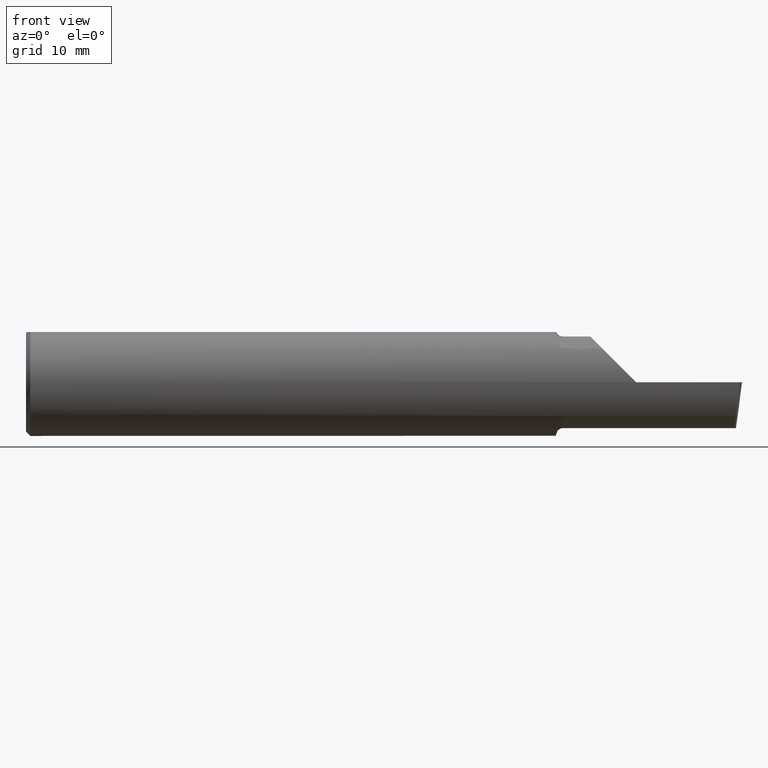
[diagram: clean part render]
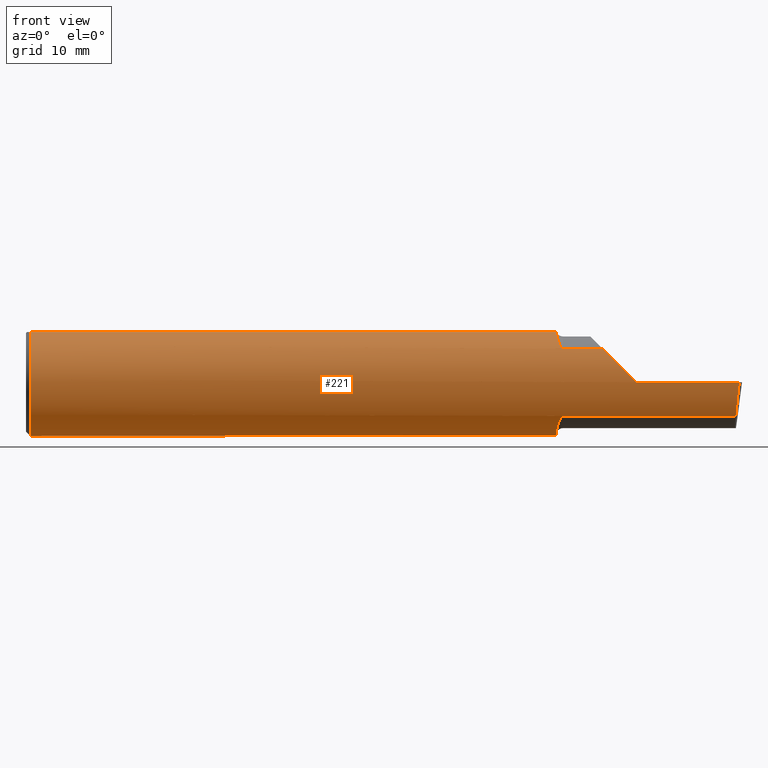
[diagram: same view with one face highlighted and labeled with its STEP entity id]
A machine part, front view. The second image highlights one B-rep face of the part: STEP entity #221.
In plain terms, the highlighted cylindrical surface (partial cylindrical patch) has radius 4.7587 mm, axis along (-1, -0, -0).
Its self-contained STEP definition (entity closure, byte-faithful):
#9 = CARTESIAN_POINT ( 'NONE',  ( 1.875000000000000000, -0.1458506693440427548, 0.1175908361731248797 ) ) ;
#14 = VERTEX_POINT ( 'NONE', #1193 ) ;
#19 = CARTESIAN_POINT ( 'NONE',  ( 1.870406129700034503, -0.1440620991073834900, 0.1197788275335143343 ) ) ;
#28 = CARTESIAN_POINT ( 'NONE',  ( 0.01499999999999970281, 0.000000000000000000, 0.000000000000000000 ) ) ;
#31 = VECTOR ( 'NONE', #447, 39.37007874015748143 ) ;
#41 = CARTESIAN_POINT ( 'NONE',  ( 1.851098502765448073, -0.06597272163553667690, 0.1753499999999999504 ) ) ;
#47 = CARTESIAN_POINT ( 'NONE',  ( 1.875000000000000000, -0.1458506693440427548, -0.1175908361731248936 ) ) ;
#53 = VECTOR ( 'NONE', #1042, 39.37007874015748143 ) ;
#58 = EDGE_CURVE ( 'NONE', #216, #253, #649, .T. ) ;
#60 = VERTEX_POINT ( 'NONE', #434 ) ;
#61 = CARTESIAN_POINT ( 'NONE',  ( 2.500000000000000000, -0.06597272163553667690, 0.1753499999999999504 ) ) ;
#66 = EDGE_CURVE ( 'NONE', #854, #476, #115, .T. ) ;
#77 = VERTEX_POINT ( 'NONE', #1012 ) ;
#84 = CARTESIAN_POINT ( 'NONE',  ( 2.500000000000000000, 0.06597272163553667690, 0.1753499999999999504 ) ) ;
#98 = CARTESIAN_POINT ( 'NONE',  ( 2.129999999999999893, -0.1873499933279955953, 4.999999999980550330E-05 ) ) ;
#103 = CARTESIAN_POINT ( 'NONE',  ( 2.129999999999999893, 0.000000000000000000, 0.000000000000000000 ) ) ;
#115 = LINE ( 'NONE', #778, #901 ) ;
#120 = EDGE_CURVE ( 'NONE', #741, #874, #1227, .T. ) ;
#136 = CARTESIAN_POINT ( 'NONE',  ( 1.854230084997277261, -0.09734420566617382753, 0.1603106885969620143 ) ) ;
#155 = EDGE_CURVE ( 'NONE', #77, #1074, #1251, .T. ) ;
#172 = LINE ( 'NONE', #549, #860 ) ;
#178 = CARTESIAN_POINT ( 'NONE',  ( 1.866259014618896206, -0.1391655641058451298, -0.1254591096813069961 ) ) ;
#193 = CARTESIAN_POINT ( 'NONE',  ( 1.850039838006806825, -0.03734999999998269565, -0.1835892153695343754 ) ) ;
#199 = DIRECTION ( 'NONE',  ( 0.000000000000000000, 0.000000000000000000, -1.000000000000000000 ) ) ;
#210 = DIRECTION ( 'NONE',  ( 0.000000000000000000, 0.000000000000000000, -1.000000000000000000 ) ) ;
#216 = VERTEX_POINT ( 'NONE', #977 ) ;
#221 = ADVANCED_FACE ( 'NONE', ( #587 ), #601, .T. ) ;
#235 = EDGE_CURVE ( 'NONE', #60, #561, #281, .T. ) ;
#253 = VERTEX_POINT ( 'NONE', #872 ) ;
#254 = CARTESIAN_POINT ( 'NONE',  ( 1.850000000000000311, 0.06597272163553667690, 0.1753499999999999504 ) ) ;
#264 = LINE ( 'NONE', #936, #53 ) ;
#281 = CIRCLE ( 'NONE', #839, 0.1873499999999999888 ) ;
#283 = CARTESIAN_POINT ( 'NONE',  ( 1.850166568237841425, -0.04837106252207426516, -0.1813470537895560952 ) ) ;
#291 = CARTESIAN_POINT ( 'NONE',  ( 1.857923878564141429, -0.1176491503945758521, -0.1462176107371216116 ) ) ;
#297 = CARTESIAN_POINT ( 'NONE',  ( 1.875000000000000000, -0.1458506693440427548, -0.1175908361731248936 ) ) ;
#305 = CARTESIAN_POINT ( 'NONE',  ( 1.869508186118483906, -0.1432785244528196056, -0.1207177450233198057 ) ) ;
#319 = CARTESIAN_POINT ( 'NONE',  ( 1.855399435735852309, -0.1047159129172011843, 0.1555916541660355978 ) ) ;
#323 = ORIENTED_EDGE ( 'NONE', *, *, #469, .T. ) ;
#340 = CARTESIAN_POINT ( 'NONE',  ( 2.129999999999999893, -0.1873499933279955953, 4.999999999980550330E-05 ) ) ;
#348 = DIRECTION ( 'NONE',  ( -1.000000000000000000, -0.000000000000000000, -0.000000000000000000 ) ) ;
#368 = EDGE_CURVE ( 'NONE', #216, #792, #264, .T. ) ;
#369 = DIRECTION ( 'NONE',  ( 0.000000000000000000, 0.000000000000000000, -1.000000000000000000 ) ) ;
#384 = AXIS2_PLACEMENT_3D ( 'NONE', #887, #413, #417 ) ;
#395 = CARTESIAN_POINT ( 'NONE',  ( 0.01499999999999970281, 0.06597272163553667690, 0.1753499999999999504 ) ) ;
#411 = CARTESIAN_POINT ( 'NONE',  ( 1.864894673599584163, -0.1369836147008977878, 0.1278739516676672128 ) ) ;
#413 = DIRECTION ( 'NONE',  ( -1.000000000000000000, -0.000000000000000000, -0.000000000000000000 ) ) ;
#417 = DIRECTION ( 'NONE',  ( 0.000000000000000000, 0.000000000000000000, 1.000000000000000000 ) ) ;
#420 = CARTESIAN_POINT ( 'NONE',  ( 1.858319021612074851, -0.1185481145634844080, 0.1453290397602938211 ) ) ;
#423 = VECTOR ( 'NONE', #474, 39.37007874015748143 ) ;
#427 = CARTESIAN_POINT ( 'NONE',  ( 1.873870791247174594, -0.1458506693440428104, 0.1175908361731248797 ) ) ;
#429 = ORIENTED_EDGE ( 'NONE', *, *, #1191, .T. ) ;
#434 = CARTESIAN_POINT ( 'NONE',  ( 2.129999999999999893, -0.1873499999999999888, -3.414809992080329023E-17 ) ) ;
#435 = CARTESIAN_POINT ( 'NONE',  ( 0.01499999999999970281, 0.000000000000000000, -0.1873499999999999888 ) ) ;
#447 = DIRECTION ( 'NONE',  ( -1.000000000000000000, -0.000000000000000000, -0.000000000000000000 ) ) ;
#453 = CARTESIAN_POINT ( 'NONE',  ( 0.01499999999999970281, 0.000000000000000000, 0.000000000000000000 ) ) ;
#469 = EDGE_CURVE ( 'NONE', #77, #547, #590, .T. ) ;
#474 = DIRECTION ( 'NONE',  ( 1.000000000000000000, 0.000000000000000000, 0.000000000000000000 ) ) ;
#476 = VERTEX_POINT ( 'NONE', #884 ) ;
#488 = CARTESIAN_POINT ( 'NONE',  ( 2.046082715205439051, -0.1729593657901919435, 0.08396728479456107286 ) ) ;
#494 = DIRECTION ( 'NONE',  ( 0.000000000000000000, 0.000000000000000000, 1.000000000000000000 ) ) ;
#496 = CARTESIAN_POINT ( 'NONE',  ( 1.861829932363948004, -0.1298708400701842069, -0.1351436637213307423 ) ) ;
#501 = DIRECTION ( 'NONE',  ( 1.000000000000000000, 0.000000000000000000, 0.000000000000000000 ) ) ;
#514 = CARTESIAN_POINT ( 'NONE',  ( 1.850039838006806825, -0.03734999999998269565, -0.1835892153695343754 ) ) ;
#547 = VERTEX_POINT ( 'NONE', #514 ) ;
#549 = CARTESIAN_POINT ( 'NONE',  ( 2.500000000000000000, -0.1873499999999999888, -3.414809992080329023E-17 ) ) ;
#561 = VERTEX_POINT ( 'NONE', #340 ) ;
#578 = ORIENTED_EDGE ( 'NONE', *, *, #632, .T. ) ;
#583 = AXIS2_PLACEMENT_3D ( 'NONE', #453, #919, #369 ) ;
#587 = FACE_OUTER_BOUND ( 'NONE', #602, .T. ) ;
#590 = B_SPLINE_CURVE_WITH_KNOTS ( 'NONE', 3,
 ( #853, #956, #975, #193 ),
 .UNSPECIFIED., .F., .F.,
 ( 4, 4 ),
 ( 0.000000000000000000, 0.0001784538144965313580 ),
 .UNSPECIFIED. ) ;
#601 = CYLINDRICAL_SURFACE ( 'NONE', #384, 0.1873499999999999888 ) ;
#602 = EDGE_LOOP ( 'NONE', ( #797, #883, #696, #829, #429, #804, #578, #1050, #698, #840, #931, #690, #323, #1217 ) ) ;
#604 = CARTESIAN_POINT ( 'NONE',  ( 1.851627905798276075, -0.07418521663962782120, 0.1722601759518783415 ) ) ;
#631 = LINE ( 'NONE', #61, #31 ) ;
#632 = EDGE_CURVE ( 'NONE', #854, #14, #794, .T. ) ;
#649 =( BOUNDED_CURVE ( )  B_SPLINE_CURVE ( 3, ( #905, #815, #720, #1014 ),
 .UNSPECIFIED., .F., .F. ) 
 B_SPLINE_CURVE_WITH_KNOTS ( ( 4, 4 ),
 ( 0.6649416263728794574, 1.343476681901080827 ),
 .UNSPECIFIED. ) 
 CURVE ( )  GEOMETRIC_REPRESENTATION_ITEM ( )  RATIONAL_B_SPLINE_CURVE ( ( 1.000000000000000000, 0.9619991217608383494, 0.9619991217608383494, 1.000000000000000000 ) ) 
 REPRESENTATION_ITEM ( '' )  );
#658 = CARTESIAN_POINT ( 'NONE',  ( 1.867356132096729349, -0.1409032011362423564, -0.1235000345794673854 ) ) ;
#678 = CARTESIAN_POINT ( 'NONE',  ( 2.012459163826875397, -0.1458506693440431157, 0.1175908361731245327 ) ) ;
#681 = CARTESIAN_POINT ( 'NONE',  ( 1.850039838006806825, -0.03734999999998269565, -0.1835892153695343754 ) ) ;
#686 = DIRECTION ( 'NONE',  ( 1.000000000000000000, -0.000000000000000000, -0.000000000000000000 ) ) ;
#690 = ORIENTED_EDGE ( 'NONE', *, *, #155, .F. ) ;
#696 = ORIENTED_EDGE ( 'NONE', *, *, #727, .T. ) ;
#698 = ORIENTED_EDGE ( 'NONE', *, *, #812, .T. ) ;
#717 = CARTESIAN_POINT ( 'NONE',  ( 1.875000000000000000, -0.1458506693440427548, 0.1175908361731248797 ) ) ;
#720 = CARTESIAN_POINT ( 'NONE',  ( 2.485641833368803955, -0.1873500000000004606, -0.04320822862950149390 ) ) ;
#727 = EDGE_CURVE ( 'NONE', #253, #60, #172, .T. ) ;
#734 = CARTESIAN_POINT ( 'NONE',  ( 0.01499999999999970281, -0.06597272163553674629, 0.1753499999999999504 ) ) ;
#741 = VERTEX_POINT ( 'NONE', #435 ) ;
#778 = CARTESIAN_POINT ( 'NONE',  ( 2.020000000000000462, -0.1458506693440427548, 0.1175908361731248797 ) ) ;
#785 = CARTESIAN_POINT ( 'NONE',  ( 1.850000000000000311, 0.000000000000000000, 0.000000000000000000 ) ) ;
#788 = CARTESIAN_POINT ( 'NONE',  ( 1.860029729210737282, -0.1250361486766445318, 0.1397745886286401729 ) ) ;
#792 = VERTEX_POINT ( 'NONE', #47 ) ;
#794 = B_SPLINE_CURVE_WITH_KNOTS ( 'NONE', 3,
 ( #717, #427, #995, #1104, #19, #907, #989, #411, #1195, #788, #420, #319, #136, #1081, #604, #41 ),
 .UNSPECIFIED., .F., .F.,
 ( 4, 2, 2, 2, 2, 2, 2, 4 ),
 ( 0.000000000000000000, 8.459854343519203422E-05, 0.0001691970868703840684, 0.0003383941737407674321, 0.0006767883474815441884, 0.001353576694963095966, 0.002030365042444647744, 0.002707153389926199739 ),
 .UNSPECIFIED. ) ;
#797 = ORIENTED_EDGE ( 'NONE', *, *, #368, .F. ) ;
#804 = ORIENTED_EDGE ( 'NONE', *, *, #66, .F. ) ;
#812 = EDGE_CURVE ( 'NONE', #1157, #741, #1124, .T. ) ;
#815 = CARTESIAN_POINT ( 'NONE',  ( 2.481378470299465011, -0.1729704544206528138, -0.08395353130638598393 ) ) ;
#829 = ORIENTED_EDGE ( 'NONE', *, *, #235, .T. ) ;
#839 = AXIS2_PLACEMENT_3D ( 'NONE', #103, #348, #494 ) ;
#840 = ORIENTED_EDGE ( 'NONE', *, *, #120, .T. ) ;
#853 = CARTESIAN_POINT ( 'NONE',  ( 1.850000000000000311, -0.03038882195448448786, -0.1848689860420580089 ) ) ;
#854 = VERTEX_POINT ( 'NONE', #9 ) ;
#860 = VECTOR ( 'NONE', #1220, 39.37007874015748143 ) ;
#866 = EDGE_CURVE ( 'NONE', #547, #792, #1203, .T. ) ;
#872 = CARTESIAN_POINT ( 'NONE',  ( 2.490564789181363814, -0.1873500000000000165, -1.024442997624098707E-16 ) ) ;
#874 = VERTEX_POINT ( 'NONE', #395 ) ;
#883 = ORIENTED_EDGE ( 'NONE', *, *, #58, .T. ) ;
#884 = CARTESIAN_POINT ( 'NONE',  ( 2.012459163826875397, -0.1458506693440431157, 0.1175908361731245327 ) ) ;
#887 = CARTESIAN_POINT ( 'NONE',  ( 2.500000000000000000, 0.000000000000000000, 0.000000000000000000 ) ) ;
#896 = EDGE_CURVE ( 'NONE', #874, #1074, #954, .T. ) ;
#901 = VECTOR ( 'NONE', #501, 39.37007874015748143 ) ;
#905 = CARTESIAN_POINT ( 'NONE',  ( 2.478260734595986392, -0.1458506693440426993, -0.1175908361731249352 ) ) ;
#907 = CARTESIAN_POINT ( 'NONE',  ( 1.868491757478010884, -0.1423009007157635952, 0.1218762070857073582 ) ) ;
#919 = DIRECTION ( 'NONE',  ( 1.000000000000000000, -0.000000000000000000, -0.000000000000000000 ) ) ;
#931 = ORIENTED_EDGE ( 'NONE', *, *, #896, .T. ) ;
#936 = CARTESIAN_POINT ( 'NONE',  ( 2.020000000000000462, -0.1458506693440427548, -0.1175908361731248936 ) ) ;
#949 = CARTESIAN_POINT ( 'NONE',  ( 1.872295777593528499, -0.1453102901644609812, -0.1182622652244526007 ) ) ;
#954 = LINE ( 'NONE', #84, #423 ) ;
#956 = CARTESIAN_POINT ( 'NONE',  ( 1.850000000000000311, -0.03272296772024569506, -0.1844852984284125474 ) ) ;
#974 = CARTESIAN_POINT ( 'NONE',  ( 1.852087628926885277, -0.07989602565674112922, -0.1698299452165267787 ) ) ;
#975 = CARTESIAN_POINT ( 'NONE',  ( 1.850013313405130200, -0.03504329471691042253, -0.1840584991569796103 ) ) ;
#977 = CARTESIAN_POINT ( 'NONE',  ( 2.478260734595986392, -0.1458506693440426993, -0.1175908361731249352 ) ) ;
#989 = CARTESIAN_POINT ( 'NONE',  ( 1.867524011656941152, -0.1410120054099410491, 0.1233681310475844423 ) ) ;
#995 = CARTESIAN_POINT ( 'NONE',  ( 1.872831851345273746, -0.1455120168156414096, 0.1180117954460257190 ) ) ;
#1012 = CARTESIAN_POINT ( 'NONE',  ( 1.850000000000000311, -0.03038882195448448786, -0.1848689860420580089 ) ) ;
#1014 = CARTESIAN_POINT ( 'NONE',  ( 2.490564789181363814, -0.1873500000000000165, -1.024442997624098707E-16 ) ) ;
#1042 = DIRECTION ( 'NONE',  ( -1.000000000000000000, -0.000000000000000000, -0.000000000000000000 ) ) ;
#1044 = AXIS2_PLACEMENT_3D ( 'NONE', #785, #1078, #210 ) ;
#1047 = CARTESIAN_POINT ( 'NONE',  ( 1.863307169130999696, -0.1337603937625612971, -0.1312869349942389352 ) ) ;
#1050 = ORIENTED_EDGE ( 'NONE', *, *, #1151, .T. ) ;
#1053 = CARTESIAN_POINT ( 'NONE',  ( 1.856095625273644911, -0.1087685873904362249, -0.1529457646722466313 ) ) ;
#1074 = VERTEX_POINT ( 'NONE', #254 ) ;
#1075 =( BOUNDED_CURVE ( )  B_SPLINE_CURVE ( 3, ( #98, #1159, #488, #678 ),
 .UNSPECIFIED., .F., .T. ) 
 B_SPLINE_CURVE_WITH_KNOTS ( ( 4, 4 ),
 ( 4.712655860558660592, 5.390924035912876278 ),
 .UNSPECIFIED. ) 
 CURVE ( )  GEOMETRIC_REPRESENTATION_ITEM ( )  RATIONAL_B_SPLINE_CURVE ( ( 1.000000000000000000, 0.9620287217561405146, 0.9620287217561405146, 1.000000000000000000 ) ) 
 REPRESENTATION_ITEM ( '' )  );
#1076 = CARTESIAN_POINT ( 'NONE',  ( 1.850589148640209736, -0.05908366524462448088, -0.1781423748276985686 ) ) ;
#1078 = DIRECTION ( 'NONE',  ( 1.000000000000000000, 0.000000000000000000, 0.000000000000000000 ) ) ;
#1081 = CARTESIAN_POINT ( 'NONE',  ( 1.852346990648201963, -0.08209970639579344809, 0.1686269535540952658 ) ) ;
#1104 = CARTESIAN_POINT ( 'NONE',  ( 1.871108380685238215, -0.1446095476661908297, 0.1191159503422182797 ) ) ;
#1121 = AXIS2_PLACEMENT_3D ( 'NONE', #28, #686, #199 ) ;
#1124 = CIRCLE ( 'NONE', #583, 0.1873499999999999888 ) ;
#1151 = EDGE_CURVE ( 'NONE', #14, #1157, #631, .T. ) ;
#1152 = CARTESIAN_POINT ( 'NONE',  ( 1.873566502919490340, -0.1458506693440433377, -0.1175908361731262119 ) ) ;
#1155 = CARTESIAN_POINT ( 'NONE',  ( 1.870297684225571855, -0.1440260204019161716, -0.1198229913283984510 ) ) ;
#1157 = VERTEX_POINT ( 'NONE', #734 ) ;
#1159 = CARTESIAN_POINT ( 'NONE',  ( 2.086809439718250836, -0.1873384666234800822, 0.04324056028174919769 ) ) ;
#1191 = EDGE_CURVE ( 'NONE', #561, #476, #1075, .T. ) ;
#1193 = CARTESIAN_POINT ( 'NONE',  ( 1.851098502765448073, -0.06597272163553667690, 0.1753499999999999504 ) ) ;
#1195 = CARTESIAN_POINT ( 'NONE',  ( 1.863559855906489648, -0.1340651951299675904, 0.1309361823764237931 ) ) ;
#1203 = B_SPLINE_CURVE_WITH_KNOTS ( 'NONE', 3,
 ( #681, #283, #1076, #974, #1257, #1053, #291, #496, #1047, #178, #658, #305, #1155, #949, #1152, #297 ),
 .UNSPECIFIED., .F., .F.,
 ( 4, 2, 2, 2, 2, 2, 2, 4 ),
 ( 0.0001784538144965313580, 0.001031077104218437734, 0.001883700393940343975, 0.002736323683662250650, 0.003162635328523207348, 0.003375791150953687866, 0.003482369062168928341, 0.003588946973384167950 ),
 .UNSPECIFIED. ) ;
#1217 = ORIENTED_EDGE ( 'NONE', *, *, #866, .T. ) ;
#1220 = DIRECTION ( 'NONE',  ( -1.000000000000000000, -0.000000000000000000, -0.000000000000000000 ) ) ;
#1227 = CIRCLE ( 'NONE', #1121, 0.1873499999999999888 ) ;
#1251 = CIRCLE ( 'NONE', #1044, 0.1873499999999999888 ) ;
#1257 = CARTESIAN_POINT ( 'NONE',  ( 1.853164824311532621, -0.08996513469141388664, -0.1647097054640222491 ) ) ;